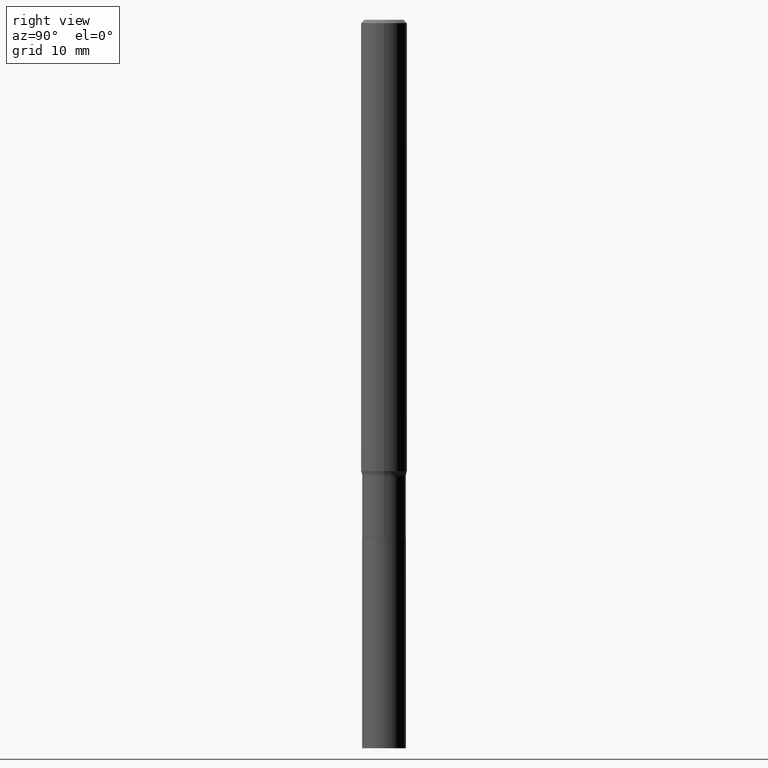
[diagram: clean part render]
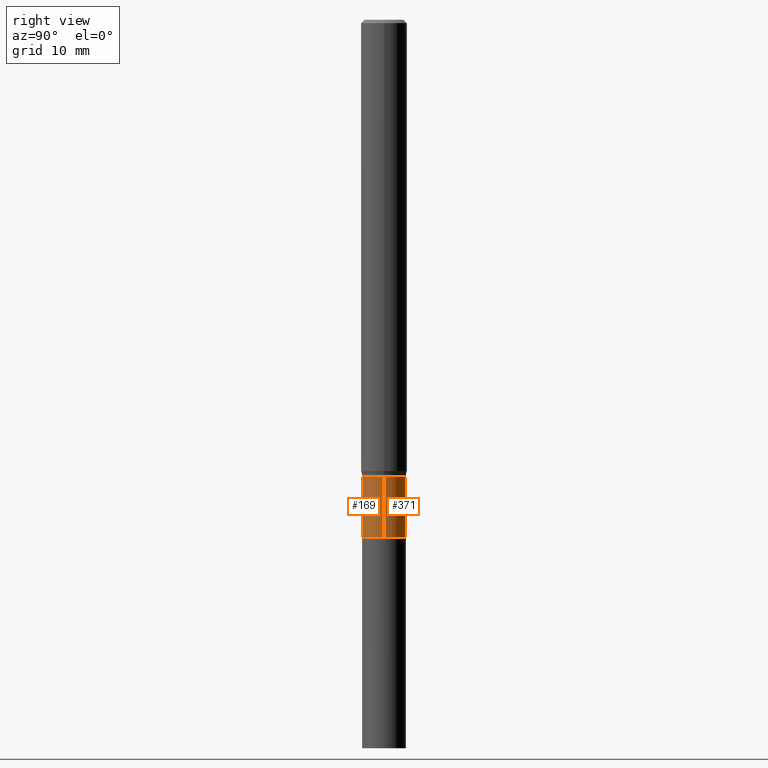
[diagram: same view with one multi-face feature highlighted, each face labeled with its STEP entity id]
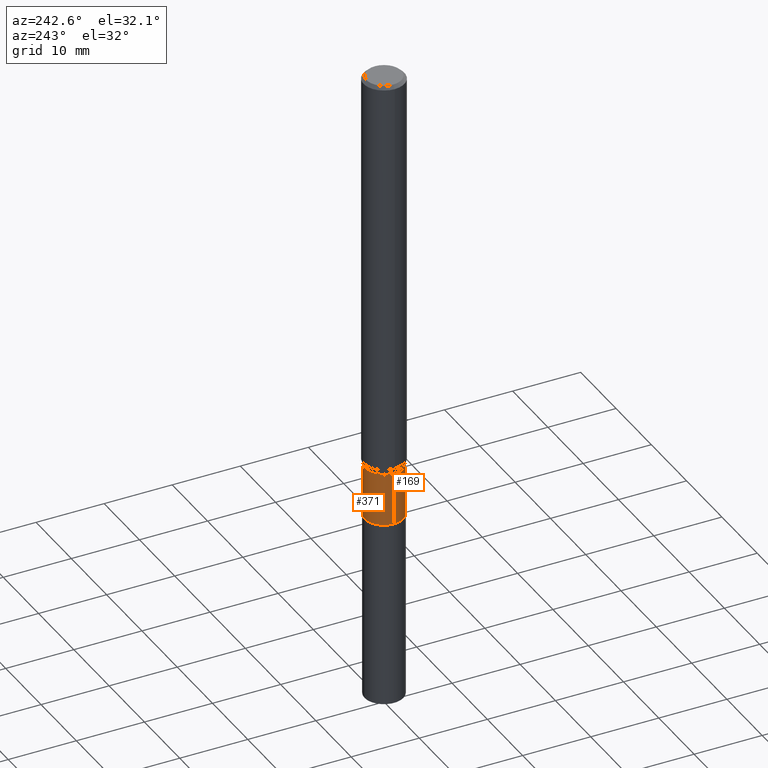
[diagram: same view with one multi-face feature highlighted, each face labeled with its STEP entity id]
A machine part, right view. The highlighted faces form ONE feature: a constant-radius fillet chain: 2 tangent blend faces with common blend radius 2.8499 mm. The faces share edges in the B-rep.
A second angle (auxiliary view) of the same feature is appended — it is thin or edge-on in the first view.
Their STEP definitions:
[1] entity #169 (Cylinder):
#11 = ORIENTED_EDGE ( 'NONE', *, *, #151, .F. ) ;
#16 = ORIENTED_EDGE ( 'NONE', *, *, #17, .F. ) ;
#17 = EDGE_CURVE ( 'NONE', #274, #356, #312, .T. ) ;
#60 = FACE_OUTER_BOUND ( 'NONE', #338, .T. ) ;
#62 = DIRECTION ( 'NONE',  ( -2.445468806185136597E-29, 3.491481338843145583E-15, 1.000000000000000000 ) ) ;
#75 = CARTESIAN_POINT ( 'NONE',  ( 0.1121999999999999664, -8.979740855370682678E-15, -2.347500000000000142 ) ) ;
#81 = CIRCLE ( 'NONE', #284, 0.1122000000000000081 ) ;
#86 = DIRECTION ( 'NONE',  ( 1.000000000000000000, -6.982962677686274599E-15, 0.000000000000000000 ) ) ;
#101 = AXIS2_PLACEMENT_3D ( 'NONE', #409, #202, #340 ) ;
#110 = DIRECTION ( 'NONE',  ( -2.445468806185136877E-29, 3.491481338843145188E-15, 1.000000000000000000 ) ) ;
#151 = EDGE_CURVE ( 'NONE', #232, #274, #164, .T. ) ;
#158 = VECTOR ( 'NONE', #110, 39.37007874015748143 ) ;
#164 = LINE ( 'NONE', #246, #271 ) ;
#169 = ADVANCED_FACE ( 'NONE', ( #60 ), #317, .T. ) ;
#180 = CARTESIAN_POINT ( 'NONE',  ( 0.000000000000000000, 0.000000000000000000, 0.000000000000000000 ) ) ;
#201 = CARTESIAN_POINT ( 'NONE',  ( 0.1122000000000000081, -1.005581540400214008E-14, -2.655699999999999950 ) ) ;
#202 = DIRECTION ( 'NONE',  ( -2.445468806185136597E-29, 3.491481338843145583E-15, 1.000000000000000000 ) ) ;
#211 = DIRECTION ( 'NONE',  ( 1.000000000000000000, -6.982962677686266711E-15, 4.876176775795936353E-29 ) ) ;
#214 = EDGE_CURVE ( 'NONE', #232, #331, #81, .T. ) ;
#231 = ORIENTED_EDGE ( 'NONE', *, *, #214, .T. ) ;
#232 = VERTEX_POINT ( 'NONE', #453 ) ;
#244 = AXIS2_PLACEMENT_3D ( 'NONE', #180, #275, #211 ) ;
#246 = CARTESIAN_POINT ( 'NONE',  ( -0.1121999999999999803, 7.972289495228322686E-16, -5.519045171266003720E-30 ) ) ;
#249 = CARTESIAN_POINT ( 'NONE',  ( 6.494431508585867452E-29, -9.272326991565740875E-15, -2.655699999999999950 ) ) ;
#258 = EDGE_CURVE ( 'NONE', #331, #356, #428, .T. ) ;
#270 = ORIENTED_EDGE ( 'NONE', *, *, #258, .T. ) ;
#271 = VECTOR ( 'NONE', #286, 39.37007874015748143 ) ;
#274 = VERTEX_POINT ( 'NONE', #424 ) ;
#275 = DIRECTION ( 'NONE',  ( -2.445468806185136597E-29, 3.491481338843145583E-15, 1.000000000000000000 ) ) ;
#284 = AXIS2_PLACEMENT_3D ( 'NONE', #249, #62, #86 ) ;
#286 = DIRECTION ( 'NONE',  ( -2.445468806185136877E-29, 3.491481338843145188E-15, 1.000000000000000000 ) ) ;
#312 = CIRCLE ( 'NONE', #101, 0.1121999999999999664 ) ;
#317 = CYLINDRICAL_SURFACE ( 'NONE', #244, 0.1121999999999999803 ) ;
#331 = VERTEX_POINT ( 'NONE', #201 ) ;
#338 = EDGE_LOOP ( 'NONE', ( #11, #231, #270, #16 ) ) ;
#340 = DIRECTION ( 'NONE',  ( 1.000000000000000000, -6.982962677686260400E-15, 0.000000000000000000 ) ) ;
#356 = VERTEX_POINT ( 'NONE', #75 ) ;
#401 = CARTESIAN_POINT ( 'NONE',  ( 0.1121999999999999803, -7.834884124363990034E-16, 5.471070342443039545E-30 ) ) ;
#409 = CARTESIAN_POINT ( 'NONE',  ( 5.740738022519607668E-29, -8.196252442934283477E-15, -2.347500000000000142 ) ) ;
#424 = CARTESIAN_POINT ( 'NONE',  ( -0.1121999999999999664, -7.937060767727180795E-15, -2.347500000000000142 ) ) ;
#428 = LINE ( 'NONE', #401, #158 ) ;
#453 = CARTESIAN_POINT ( 'NONE',  ( -0.1122000000000000081, -7.937060767727180795E-15, -2.655699999999999950 ) ) ;
[2] entity #371 (Cylinder):
#10 = CARTESIAN_POINT ( 'NONE',  ( 5.740738022519607668E-29, -8.196252442934283477E-15, -2.347500000000000142 ) ) ;
#55 = AXIS2_PLACEMENT_3D ( 'NONE', #10, #159, #303 ) ;
#59 = EDGE_CURVE ( 'NONE', #356, #274, #157, .T. ) ;
#72 = AXIS2_PLACEMENT_3D ( 'NONE', #115, #300, #106 ) ;
#74 = ORIENTED_EDGE ( 'NONE', *, *, #151, .T. ) ;
#75 = CARTESIAN_POINT ( 'NONE',  ( 0.1121999999999999664, -8.979740855370682678E-15, -2.347500000000000142 ) ) ;
#106 = DIRECTION ( 'NONE',  ( 1.000000000000000000, -6.982962677686266711E-15, 4.876176775795936353E-29 ) ) ;
#110 = DIRECTION ( 'NONE',  ( -2.445468806185136877E-29, 3.491481338843145188E-15, 1.000000000000000000 ) ) ;
#115 = CARTESIAN_POINT ( 'NONE',  ( 0.000000000000000000, 0.000000000000000000, 0.000000000000000000 ) ) ;
#133 = AXIS2_PLACEMENT_3D ( 'NONE', #208, #282, #319 ) ;
#151 = EDGE_CURVE ( 'NONE', #232, #274, #164, .T. ) ;
#157 = CIRCLE ( 'NONE', #55, 0.1121999999999999664 ) ;
#158 = VECTOR ( 'NONE', #110, 39.37007874015748143 ) ;
#159 = DIRECTION ( 'NONE',  ( -2.445468806185136597E-29, 3.491481338843145583E-15, 1.000000000000000000 ) ) ;
#164 = LINE ( 'NONE', #246, #271 ) ;
#176 = CIRCLE ( 'NONE', #133, 0.1122000000000000081 ) ;
#181 = ORIENTED_EDGE ( 'NONE', *, *, #431, .T. ) ;
#201 = CARTESIAN_POINT ( 'NONE',  ( 0.1122000000000000081, -1.005581540400214008E-14, -2.655699999999999950 ) ) ;
#208 = CARTESIAN_POINT ( 'NONE',  ( 6.494431508585867452E-29, -9.272326991565740875E-15, -2.655699999999999950 ) ) ;
#218 = EDGE_LOOP ( 'NONE', ( #181, #74, #273, #408 ) ) ;
#227 = FACE_OUTER_BOUND ( 'NONE', #218, .T. ) ;
#232 = VERTEX_POINT ( 'NONE', #453 ) ;
#246 = CARTESIAN_POINT ( 'NONE',  ( -0.1121999999999999803, 7.972289495228322686E-16, -5.519045171266003720E-30 ) ) ;
#258 = EDGE_CURVE ( 'NONE', #331, #356, #428, .T. ) ;
#271 = VECTOR ( 'NONE', #286, 39.37007874015748143 ) ;
#273 = ORIENTED_EDGE ( 'NONE', *, *, #59, .F. ) ;
#274 = VERTEX_POINT ( 'NONE', #424 ) ;
#282 = DIRECTION ( 'NONE',  ( -2.445468806185136597E-29, 3.491481338843145583E-15, 1.000000000000000000 ) ) ;
#286 = DIRECTION ( 'NONE',  ( -2.445468806185136877E-29, 3.491481338843145188E-15, 1.000000000000000000 ) ) ;
#300 = DIRECTION ( 'NONE',  ( -2.445468806185136597E-29, 3.491481338843145583E-15, 1.000000000000000000 ) ) ;
#303 = DIRECTION ( 'NONE',  ( 1.000000000000000000, -6.982962677686260400E-15, 0.000000000000000000 ) ) ;
#319 = DIRECTION ( 'NONE',  ( 1.000000000000000000, -6.982962677686274599E-15, 0.000000000000000000 ) ) ;
#331 = VERTEX_POINT ( 'NONE', #201 ) ;
#356 = VERTEX_POINT ( 'NONE', #75 ) ;
#371 = ADVANCED_FACE ( 'NONE', ( #227 ), #436, .T. ) ;
#401 = CARTESIAN_POINT ( 'NONE',  ( 0.1121999999999999803, -7.834884124363990034E-16, 5.471070342443039545E-30 ) ) ;
#408 = ORIENTED_EDGE ( 'NONE', *, *, #258, .F. ) ;
#424 = CARTESIAN_POINT ( 'NONE',  ( -0.1121999999999999664, -7.937060767727180795E-15, -2.347500000000000142 ) ) ;
#428 = LINE ( 'NONE', #401, #158 ) ;
#431 = EDGE_CURVE ( 'NONE', #331, #232, #176, .T. ) ;
#436 = CYLINDRICAL_SURFACE ( 'NONE', #72, 0.1121999999999999803 ) ;
#453 = CARTESIAN_POINT ( 'NONE',  ( -0.1122000000000000081, -7.937060767727180795E-15, -2.655699999999999950 ) ) ;